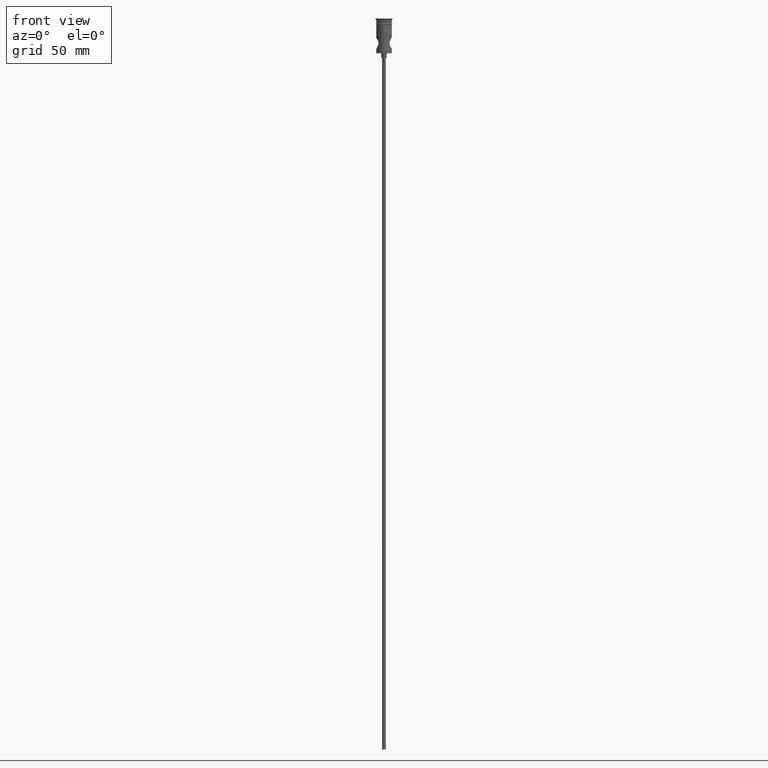
[diagram: clean part render]
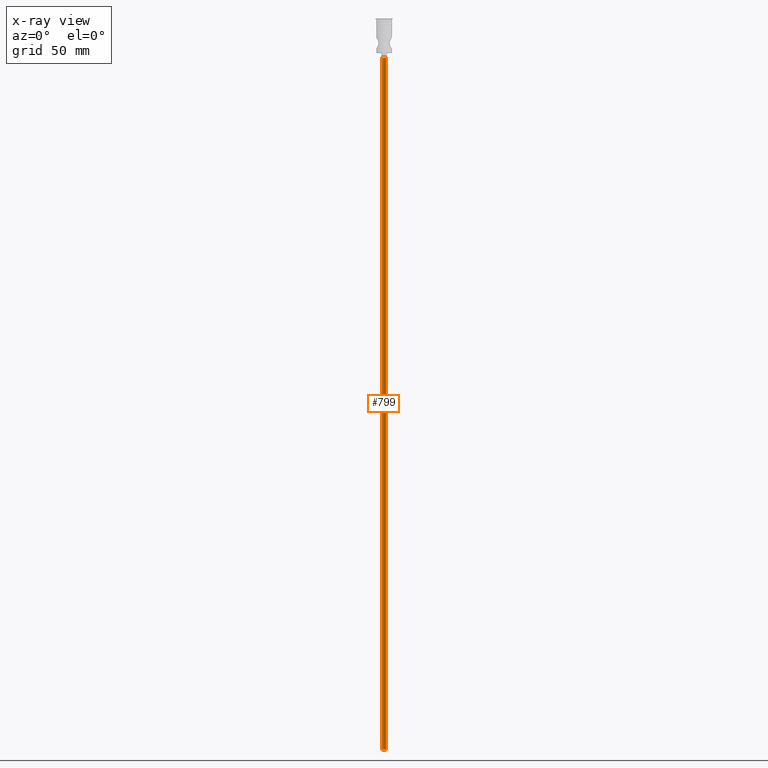
[diagram: x-ray — body ghosted, one internal face saturated and labeled with its STEP entity id]
A machine part, front view, then the same camera in x-ray: the body is ghosted and one INTERNAL B-rep face — a face not visible from any outside direction — is saturated and labeled: STEP entity #799.
In plain terms, the highlighted cylindrical surface (edge-blend (fillet) strip) has radius 1.25 mm, axis along (-0, -0, 1).
Its self-contained STEP definition (entity closure, byte-faithful):
#30 = CARTESIAN_POINT ( 'NONE',  ( -1.250000000000000000, 1.530808498934191571E-16, -472.5000000000000568 ) ) ;
#45 = VERTEX_POINT ( 'NONE', #64 ) ;
#64 = CARTESIAN_POINT ( 'NONE',  ( 1.250000000000000000, 0.000000000000000000, -472.5000000000000568 ) ) ;
#89 = EDGE_CURVE ( 'NONE', #263, #1417, #643, .T. ) ;
#93 = CIRCLE ( 'NONE', #1340, 1.250000000000000000 ) ;
#189 = CARTESIAN_POINT ( 'NONE',  ( 1.250000000000000000, 0.000000000000000000, -25.50000000000000000 ) ) ;
#218 = LINE ( 'NONE', #1331, #972 ) ;
#263 = VERTEX_POINT ( 'NONE', #30 ) ;
#272 = CARTESIAN_POINT ( 'NONE',  ( 0.000000000000000000, 0.000000000000000000, -25.50000000000000000 ) ) ;
#325 = DIRECTION ( 'NONE',  ( 0.000000000000000000, 0.000000000000000000, -1.000000000000000000 ) ) ;
#383 = EDGE_LOOP ( 'NONE', ( #1065, #970, #1351, #822 ) ) ;
#388 = DIRECTION ( 'NONE',  ( 0.000000000000000000, 0.000000000000000000, -1.000000000000000000 ) ) ;
#410 = CARTESIAN_POINT ( 'NONE',  ( 0.000000000000000000, 0.000000000000000000, -472.5000000000000568 ) ) ;
#442 = EDGE_CURVE ( 'NONE', #263, #45, #93, .T. ) ;
#496 = FACE_OUTER_BOUND ( 'NONE', #383, .T. ) ;
#537 = CARTESIAN_POINT ( 'NONE',  ( -1.250000000000000000, 1.530808498934191571E-16, -472.5000000000000568 ) ) ;
#587 = EDGE_CURVE ( 'NONE', #45, #1118, #218, .T. ) ;
#643 = LINE ( 'NONE', #537, #1032 ) ;
#799 = ADVANCED_FACE ( 'NONE', ( #496 ), #833, .T. ) ;
#822 = ORIENTED_EDGE ( 'NONE', *, *, #587, .F. ) ;
#833 = CYLINDRICAL_SURFACE ( 'NONE', #1181, 1.250000000000000000 ) ;
#877 = DIRECTION ( 'NONE',  ( -1.000000000000000000, 0.000000000000000000, 0.000000000000000000 ) ) ;
#928 = CIRCLE ( 'NONE', #1414, 1.250000000000000000 ) ;
#948 = DIRECTION ( 'NONE',  ( 1.000000000000000000, 0.000000000000000000, 0.000000000000000000 ) ) ;
#959 = DIRECTION ( 'NONE',  ( -0.000000000000000000, -0.000000000000000000, 1.000000000000000000 ) ) ;
#970 = ORIENTED_EDGE ( 'NONE', *, *, #89, .T. ) ;
#972 = VECTOR ( 'NONE', #959, 1000.000000000000000 ) ;
#1001 = CARTESIAN_POINT ( 'NONE',  ( -1.250000000000000000, 1.530808498934191571E-16, -25.50000000000000000 ) ) ;
#1032 = VECTOR ( 'NONE', #1079, 1000.000000000000000 ) ;
#1044 = EDGE_CURVE ( 'NONE', #1417, #1118, #928, .T. ) ;
#1065 = ORIENTED_EDGE ( 'NONE', *, *, #442, .F. ) ;
#1079 = DIRECTION ( 'NONE',  ( -0.000000000000000000, -0.000000000000000000, 1.000000000000000000 ) ) ;
#1118 = VERTEX_POINT ( 'NONE', #189 ) ;
#1152 = DIRECTION ( 'NONE',  ( -0.000000000000000000, -0.000000000000000000, 1.000000000000000000 ) ) ;
#1181 = AXIS2_PLACEMENT_3D ( 'NONE', #410, #1152, #948 ) ;
#1260 = DIRECTION ( 'NONE',  ( -1.000000000000000000, 0.000000000000000000, 0.000000000000000000 ) ) ;
#1313 = CARTESIAN_POINT ( 'NONE',  ( 0.000000000000000000, 0.000000000000000000, -472.5000000000000568 ) ) ;
#1331 = CARTESIAN_POINT ( 'NONE',  ( 1.250000000000000000, 0.000000000000000000, -472.5000000000000568 ) ) ;
#1340 = AXIS2_PLACEMENT_3D ( 'NONE', #1313, #325, #877 ) ;
#1351 = ORIENTED_EDGE ( 'NONE', *, *, #1044, .T. ) ;
#1414 = AXIS2_PLACEMENT_3D ( 'NONE', #272, #388, #1260 ) ;
#1417 = VERTEX_POINT ( 'NONE', #1001 ) ;